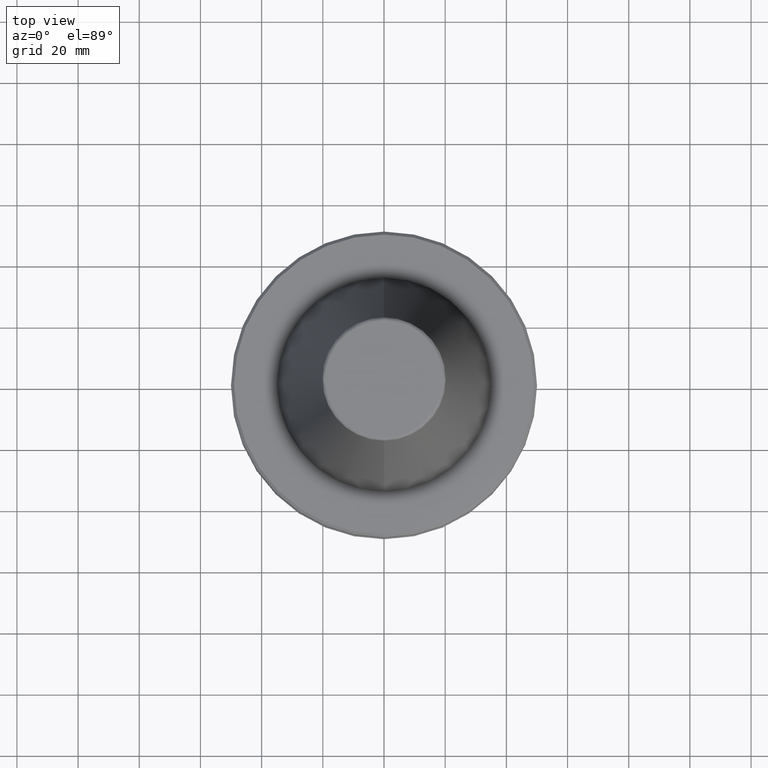
[diagram: clean part render]
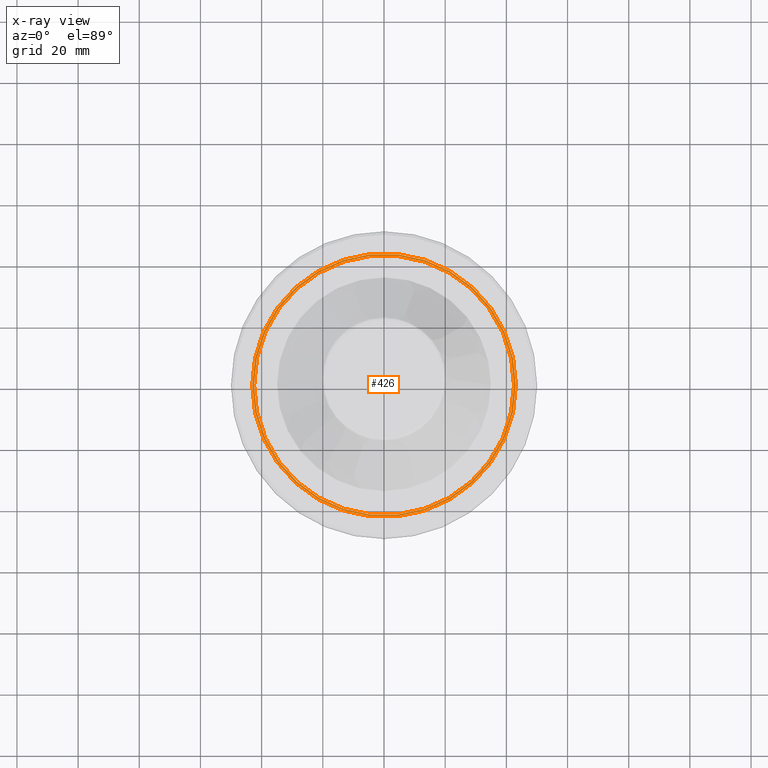
[diagram: x-ray — body ghosted, one internal face saturated and labeled with its STEP entity id]
A machine part, top view, then the same camera in x-ray: the body is ghosted and one INTERNAL B-rep face — a face not visible from any outside direction — is saturated and labeled: STEP entity #426.
In plain terms, the highlighted planar face has unit normal (0, 0, 1).
Its self-contained STEP definition (entity closure, byte-faithful):
#279 = FACE_OUTER_BOUND ( 'NONE', #997, .T. ) ;
#290 = VERTEX_POINT ( 'NONE', #2114 ) ;
#362 = DIRECTION ( 'NONE',  ( 1.000000000000000000, 0.0000000000000000000, 0.0000000000000000000 ) ) ;
#368 = DIRECTION ( 'NONE',  ( 0.0000000000000000000, 0.0000000000000000000, 1.000000000000000000 ) ) ;
#370 = CARTESIAN_POINT ( 'NONE',  ( 0.0000000000000000000, 0.0000000000000000000, -19.70000000000001000 ) ) ;
#426 = ADVANCED_FACE ( 'NONE', ( #279, #2049 ), #1766, .F. ) ;
#550 = CARTESIAN_POINT ( 'NONE',  ( 42.50000000000000000, 0.0000000000000000000, -19.70000000000001000 ) ) ;
#596 = DIRECTION ( 'NONE',  ( 1.000000000000000000, 0.0000000000000000000, 0.0000000000000000000 ) ) ;
#598 = DIRECTION ( 'NONE',  ( -0.0000000000000000000, -0.0000000000000000000, -1.000000000000000000 ) ) ;
#600 = CARTESIAN_POINT ( 'NONE',  ( 0.0000000000000000000, 0.0000000000000000000, -19.70000000000001000 ) ) ;
#618 = ORIENTED_EDGE ( 'NONE', *, *, #999, .F. ) ;
#680 = ORIENTED_EDGE ( 'NONE', *, *, #689, .F. ) ;
#689 = EDGE_CURVE ( 'NONE', #290, #2412, #2199, .T. ) ;
#752 = VERTEX_POINT ( 'NONE', #1672 ) ;
#997 = EDGE_LOOP ( 'NONE', ( #680, #2740 ) ) ;
#999 = EDGE_CURVE ( 'NONE', #752, #2577, #1590, .T. ) ;
#1179 = AXIS2_PLACEMENT_3D ( 'NONE', #1627, #2503, #2501 ) ;
#1355 = DIRECTION ( 'NONE',  ( 1.000000000000000000, 0.0000000000000000000, 0.0000000000000000000 ) ) ;
#1358 = DIRECTION ( 'NONE',  ( -0.0000000000000000000, -0.0000000000000000000, -1.000000000000000000 ) ) ;
#1363 = CARTESIAN_POINT ( 'NONE',  ( 0.0000000000000000000, 0.0000000000000000000, -19.70000000000001000 ) ) ;
#1522 = AXIS2_PLACEMENT_3D ( 'NONE', #370, #368, #362 ) ;
#1590 = CIRCLE ( 'NONE', #2420, 42.50000000000000000 ) ;
#1598 = AXIS2_PLACEMENT_3D ( 'NONE', #600, #598, #596 ) ;
#1627 = CARTESIAN_POINT ( 'NONE',  ( 0.0000000000000000000, 0.0000000000000000000, -19.70000000000001000 ) ) ;
#1658 = AXIS2_PLACEMENT_3D ( 'NONE', #2156, #2348, #1793 ) ;
#1672 = CARTESIAN_POINT ( 'NONE',  ( -42.50000000000000000, 5.204748896376250900E-015, -19.70000000000001000 ) ) ;
#1766 = PLANE ( 'NONE',  #1658 ) ;
#1793 = DIRECTION ( 'NONE',  ( 1.000000000000000000, 0.0000000000000000000, -0.0000000000000000000 ) ) ;
#1797 = EDGE_CURVE ( 'NONE', #2577, #752, #2721, .T. ) ;
#1834 = EDGE_CURVE ( 'NONE', #2412, #290, #2219, .T. ) ;
#2025 = EDGE_LOOP ( 'NONE', ( #2057, #618 ) ) ;
#2049 = FACE_BOUND ( 'NONE', #2025, .T. ) ;
#2057 = ORIENTED_EDGE ( 'NONE', *, *, #1797, .F. ) ;
#2093 = CARTESIAN_POINT ( 'NONE',  ( -43.07217782649103600, 5.699027233244276000E-015, -19.70000000000001000 ) ) ;
#2114 = CARTESIAN_POINT ( 'NONE',  ( 43.07217782649103600, 0.0000000000000000000, -19.70000000000001000 ) ) ;
#2156 = CARTESIAN_POINT ( 'NONE',  ( 0.0000000000000000000, 43.07217782649103600, -19.70000000000000300 ) ) ;
#2199 = CIRCLE ( 'NONE', #1179, 43.07217782649103600 ) ;
#2219 = CIRCLE ( 'NONE', #1522, 43.07217782649103600 ) ;
#2348 = DIRECTION ( 'NONE',  ( 0.0000000000000000000, 0.0000000000000000000, 1.000000000000000000 ) ) ;
#2412 = VERTEX_POINT ( 'NONE', #2093 ) ;
#2420 = AXIS2_PLACEMENT_3D ( 'NONE', #1363, #1358, #1355 ) ;
#2501 = DIRECTION ( 'NONE',  ( 1.000000000000000000, 0.0000000000000000000, 0.0000000000000000000 ) ) ;
#2503 = DIRECTION ( 'NONE',  ( 0.0000000000000000000, 0.0000000000000000000, 1.000000000000000000 ) ) ;
#2577 = VERTEX_POINT ( 'NONE', #550 ) ;
#2721 = CIRCLE ( 'NONE', #1598, 42.50000000000000000 ) ;
#2740 = ORIENTED_EDGE ( 'NONE', *, *, #1834, .F. ) ;